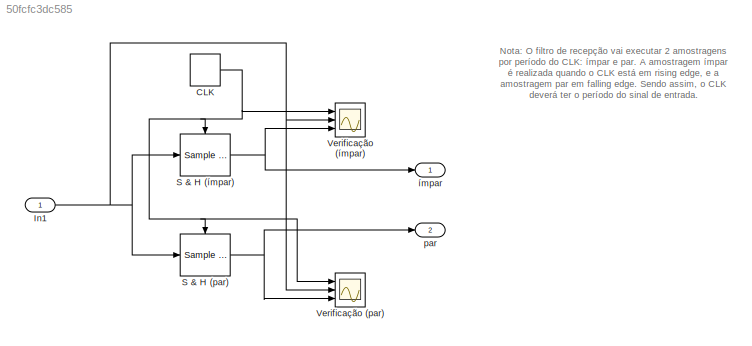
MODEL slx_50fcfc3dc585
KIND model
BLOCK [DiscretePulseGenerator] CLK
  Period = 2*T
  Ports = [0, 1]
  PulseType = Time based
  PulseWidth = 50
  SampleTime = St
BLOCK [Inport] In1
  IconDisplay = Port number
BLOCK [Reference] S & H (par)   REF=dspsigops/Sample
and Hold
  Ports = [1, 1, 0, 1]
  SourceBlock = dspsigops/Sample\nand Hold
  SourceType = Sample and Hold
  initCond = 0
  latchinput = off
  trig = Falling edge
BLOCK [Reference] S & H (ímpar)   REF=dspsigops/Sample
and Hold
  Ports = [1, 1, 0, 1]
  SourceBlock = dspsigops/Sample\nand Hold
  SourceType = Sample and Hold
  initCond = 0
  latchinput = off
  trig = Rising edge
BLOCK [Scope] Verificação (par)
  DataFormat = StructureWithTime
  Floating = off
  NumInputPorts = 3
  Ports = [3]
  SampleTime = 0
  ShowLegends = off
  YMax = 5~5~5
  YMin = -5~-5~-5
BLOCK [Scope] Verificação (ímpar)
  DataFormat = StructureWithTime
  Floating = off
  NumInputPorts = 3
  Ports = [3]
  SampleTime = 0
  SaveName = ScopeData1
  ShowLegends = off
  YMax = 5~5~5
  YMin = -5~-5~-5
BLOCK [Outport] par
  IconDisplay = Port number
  Port = 2
BLOCK [Outport] ímpar
  IconDisplay = Port number
ANNOTATION (root): Nota: O filtro de recepção vai executar 2 amostragens por período do CLK: ímpar e par. A amostragem ímpar é realizada quando o CLK está em rising edge, e a amostragem par em falling edge. Sendo assim, o CLK deverá ter o período do sinal de entrada.
NET CLK:1 -> S & H (par) :trigger, S & H (ímpar) :trigger, Verificação (par):1, Verificação (ímpar):1
NET In1:1 -> S & H (par) :1, S & H (ímpar) :1, Verificação (par):2, Verificação (ímpar):2
NET S & H (par) :1 -> Verificação (par):3, par:1
NET S & H (ímpar) :1 -> Verificação (ímpar):3, ímpar:1
note: NET lines group one-source signal fan-out (src -> all destinations, sorted); 1:1 wires keep LINE
